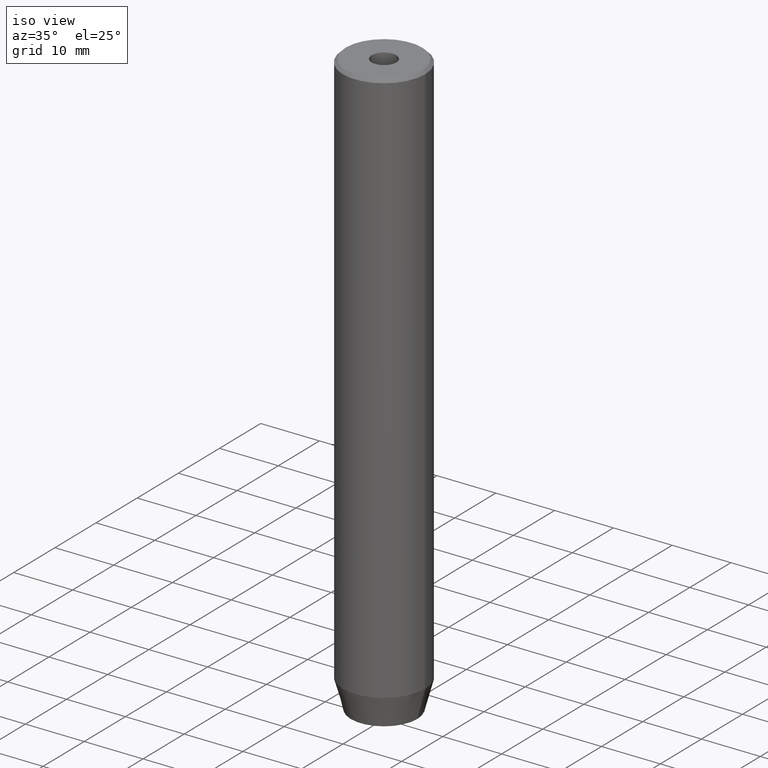
[diagram: clean part render]
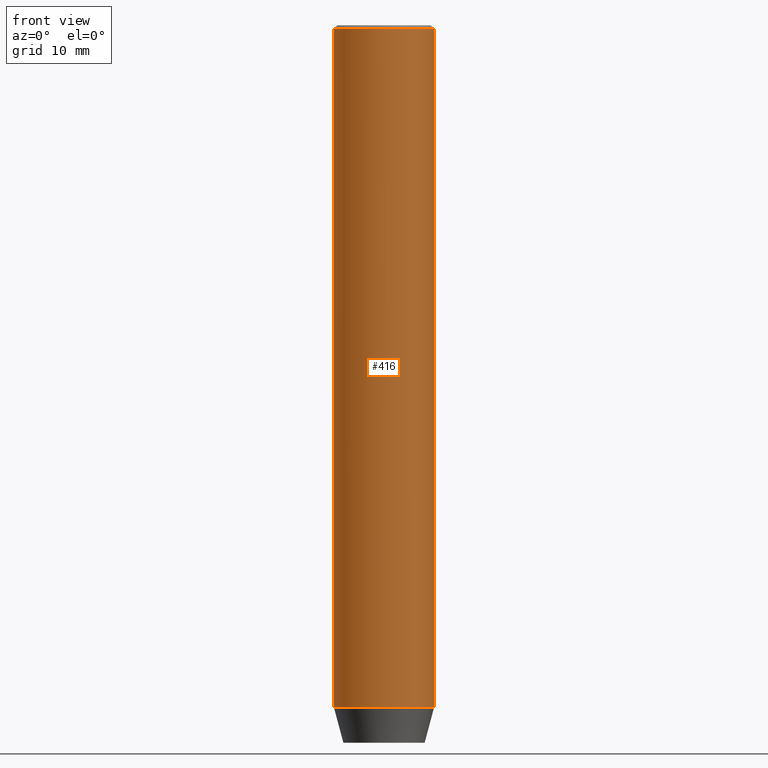
[diagram: tour spotlight — one face highlighted and labeled with its STEP entity id]
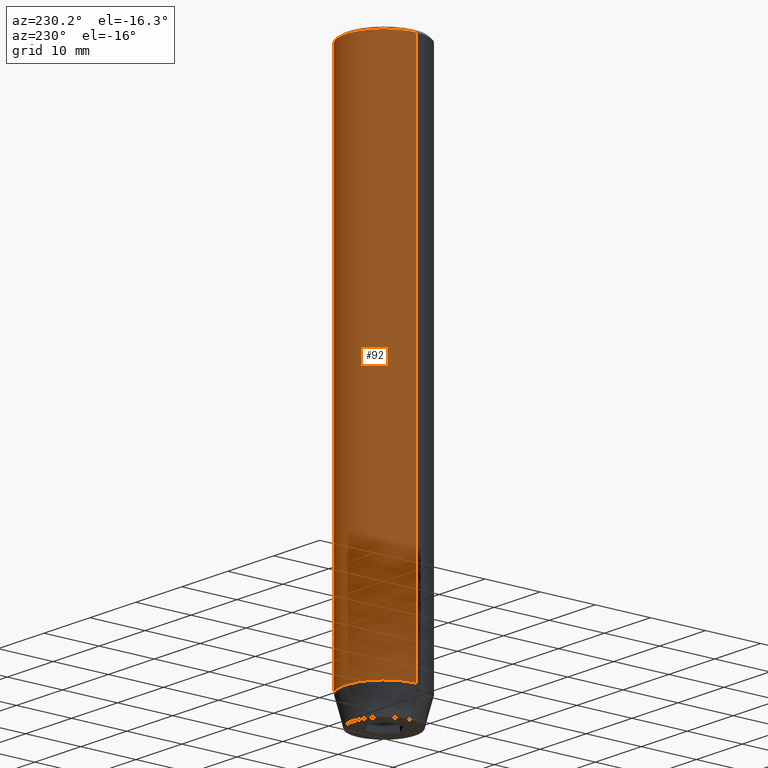
[diagram: tour spotlight — one face highlighted and labeled with its STEP entity id]
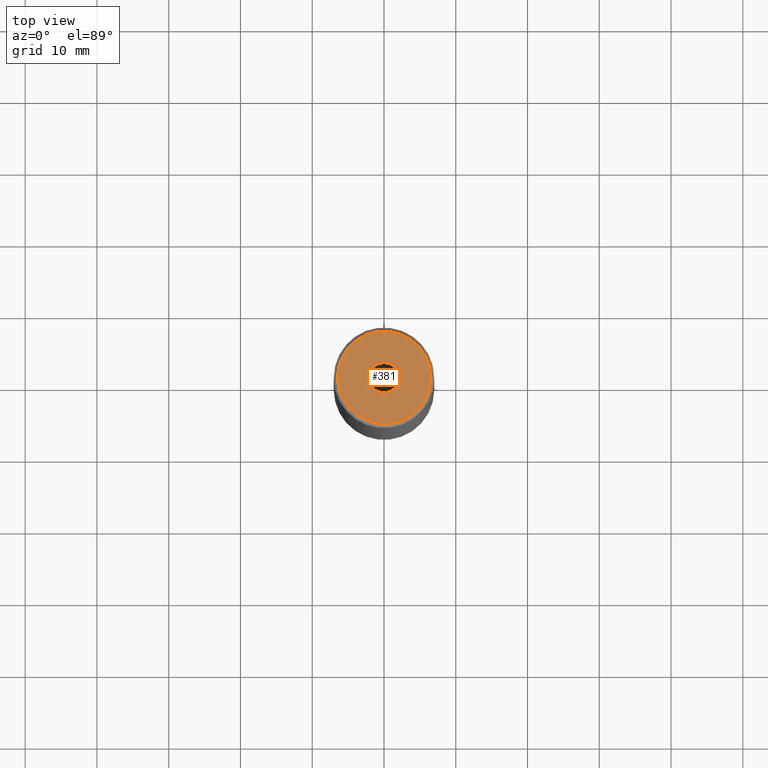
[diagram: tour spotlight — one face highlighted and labeled with its STEP entity id]
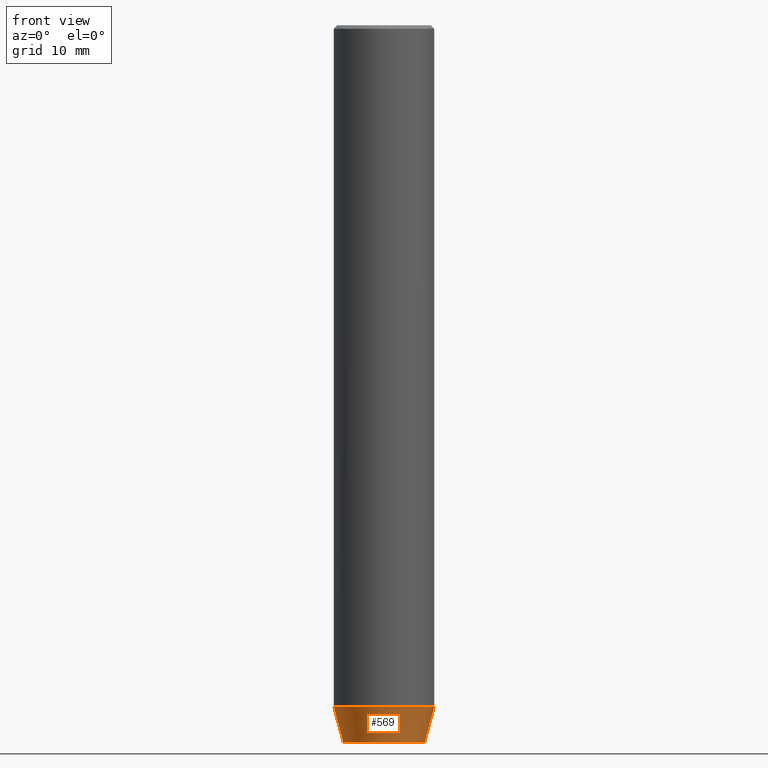
[diagram: tour spotlight — one face highlighted and labeled with its STEP entity id]
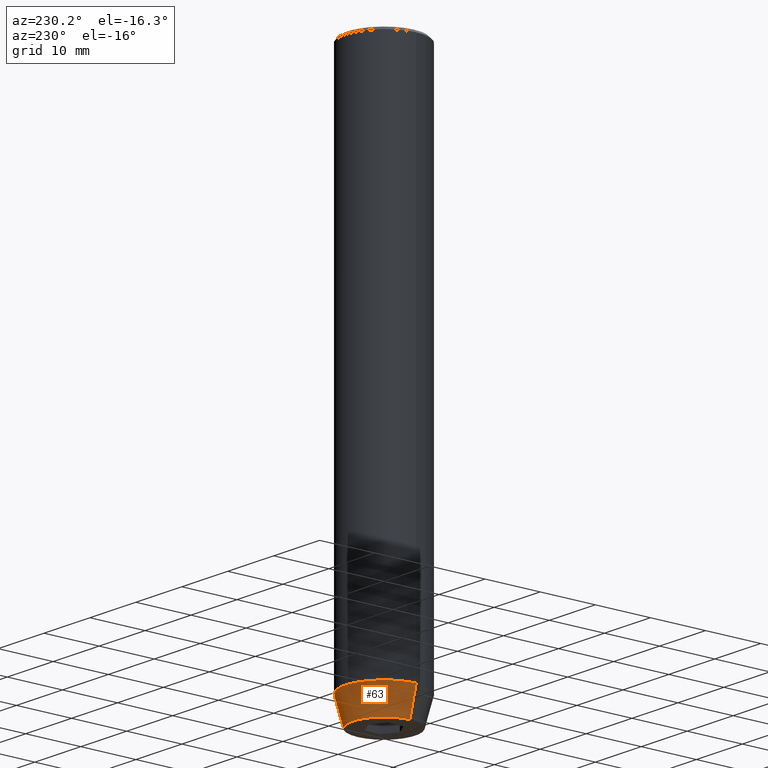
[diagram: tour spotlight — one face highlighted and labeled with its STEP entity id]
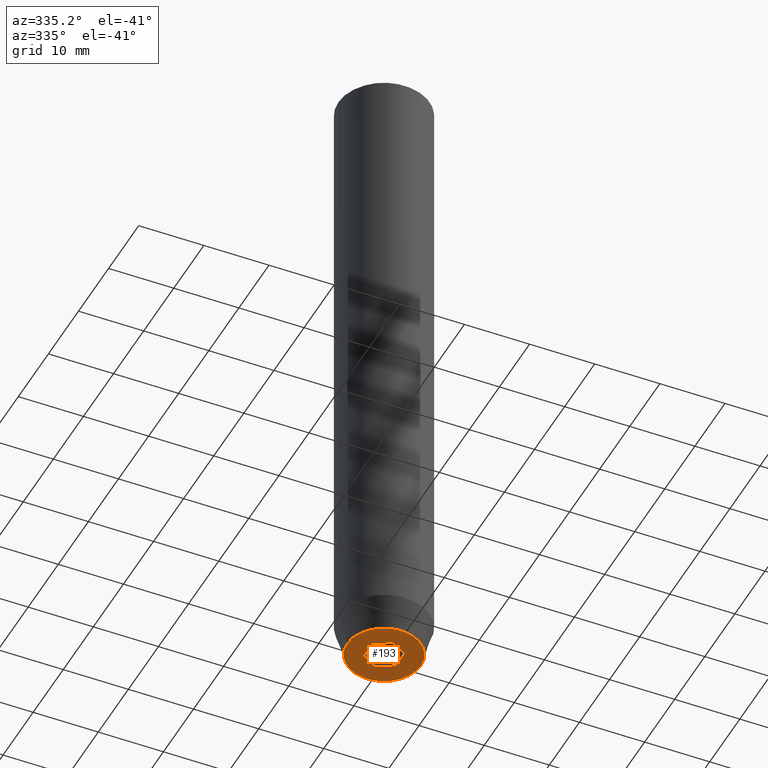
[diagram: tour spotlight — one face highlighted and labeled with its STEP entity id]
A machine part: a face-by-face anatomy tour. The part has 19 B-rep faces; the first image is the clean iso view, then the 6 largest visible faces are spotlighted one at a time (largest first), each with its STEP entity span.

Face 1 — front view, entity #416. In plain terms, the highlighted cylindrical surface (partial cylindrical patch) has radius 7 mm, axis along (-0, -0, 1).
Definition (entity closure, byte-faithful):
#15 = ORIENTED_EDGE ( 'NONE', *, *, #308, .T. ) ;
#36 = DIRECTION ( 'NONE',  ( -0.000000000000000000, -0.000000000000000000, 1.000000000000000000 ) ) ;
#48 = AXIS2_PLACEMENT_3D ( 'NONE', #438, #442, #301 ) ;
#51 = EDGE_CURVE ( 'NONE', #240, #518, #566, .T. ) ;
#67 = LINE ( 'NONE', #564, #405 ) ;
#80 = VERTEX_POINT ( 'NONE', #127 ) ;
#88 = CYLINDRICAL_SURFACE ( 'NONE', #178, 7.000000000000000000 ) ;
#127 = CARTESIAN_POINT ( 'NONE',  ( 7.000000000000000000, 0.000000000000000000, -95.00000000000000000 ) ) ;
#130 = DIRECTION ( 'NONE',  ( -0.000000000000000000, -0.000000000000000000, 1.000000000000000000 ) ) ;
#155 = VERTEX_POINT ( 'NONE', #185 ) ;
#176 = DIRECTION ( 'NONE',  ( -0.000000000000000000, -0.000000000000000000, 1.000000000000000000 ) ) ;
#177 = DIRECTION ( 'NONE',  ( 1.000000000000000000, 0.000000000000000000, 0.000000000000000000 ) ) ;
#178 = AXIS2_PLACEMENT_3D ( 'NONE', #578, #130, #177 ) ;
#179 = ORIENTED_EDGE ( 'NONE', *, *, #314, .T. ) ;
#182 = CARTESIAN_POINT ( 'NONE',  ( 0.000000000000000000, 0.000000000000000000, -95.00000000000000000 ) ) ;
#185 = CARTESIAN_POINT ( 'NONE',  ( 7.000000000000000000, 0.000000000000000000, -0.5000000000000048850 ) ) ;
#240 = VERTEX_POINT ( 'NONE', #440 ) ;
#267 = VECTOR ( 'NONE', #36, 1000.000000000000000 ) ;
#269 = AXIS2_PLACEMENT_3D ( 'NONE', #182, #176, #529 ) ;
#301 = DIRECTION ( 'NONE',  ( 1.000000000000000000, 0.000000000000000000, 0.000000000000000000 ) ) ;
#307 = DIRECTION ( 'NONE',  ( -0.000000000000000000, -0.000000000000000000, 1.000000000000000000 ) ) ;
#308 = EDGE_CURVE ( 'NONE', #80, #155, #67, .T. ) ;
#314 = EDGE_CURVE ( 'NONE', #155, #518, #427, .T. ) ;
#333 = ORIENTED_EDGE ( 'NONE', *, *, #51, .F. ) ;
#346 = EDGE_LOOP ( 'NONE', ( #333, #383, #15, #179 ) ) ;
#383 = ORIENTED_EDGE ( 'NONE', *, *, #407, .T. ) ;
#404 = FACE_OUTER_BOUND ( 'NONE', #346, .T. ) ;
#405 = VECTOR ( 'NONE', #307, 1000.000000000000000 ) ;
#407 = EDGE_CURVE ( 'NONE', #240, #80, #513, .T. ) ;
#416 = ADVANCED_FACE ( 'NONE', ( #404 ), #88, .T. ) ;
#427 = CIRCLE ( 'NONE', #48, 7.000000000000000000 ) ;
#438 = CARTESIAN_POINT ( 'NONE',  ( 0.000000000000000000, 0.000000000000000000, -0.5000000000000048850 ) ) ;
#440 = CARTESIAN_POINT ( 'NONE',  ( -7.000000000000000000, 8.572527594031473190E-16, -95.00000000000000000 ) ) ;
#442 = DIRECTION ( 'NONE',  ( 0.000000000000000000, 0.000000000000000000, -1.000000000000000000 ) ) ;
#513 = CIRCLE ( 'NONE', #269, 7.000000000000000000 ) ;
#518 = VERTEX_POINT ( 'NONE', #530 ) ;
#529 = DIRECTION ( 'NONE',  ( 1.000000000000000000, 0.000000000000000000, 0.000000000000000000 ) ) ;
#530 = CARTESIAN_POINT ( 'NONE',  ( -7.000000000000000000, 8.572527594031473190E-16, -0.5000000000000048850 ) ) ;
#564 = CARTESIAN_POINT ( 'NONE',  ( 7.000000000000000000, 0.000000000000000000, 0.000000000000000000 ) ) ;
#566 = LINE ( 'NONE', #576, #267 ) ;
#576 = CARTESIAN_POINT ( 'NONE',  ( -7.000000000000000000, 8.572527594031473190E-16, 0.000000000000000000 ) ) ;
#578 = CARTESIAN_POINT ( 'NONE',  ( 0.000000000000000000, 0.000000000000000000, 0.000000000000000000 ) ) ;

Face 2 — auxiliary view, entity #92. In plain terms, the highlighted cylindrical surface (partial cylindrical patch) has radius 7 mm, axis along (-0, -0, 1).
Definition (entity closure, byte-faithful):
#11 = DIRECTION ( 'NONE',  ( 1.000000000000000000, 0.000000000000000000, 0.000000000000000000 ) ) ;
#14 = CARTESIAN_POINT ( 'NONE',  ( 0.000000000000000000, 0.000000000000000000, 0.000000000000000000 ) ) ;
#17 = DIRECTION ( 'NONE',  ( -0.000000000000000000, -0.000000000000000000, 1.000000000000000000 ) ) ;
#36 = DIRECTION ( 'NONE',  ( -0.000000000000000000, -0.000000000000000000, 1.000000000000000000 ) ) ;
#51 = EDGE_CURVE ( 'NONE', #240, #518, #566, .T. ) ;
#65 = CARTESIAN_POINT ( 'NONE',  ( 0.000000000000000000, 0.000000000000000000, -95.00000000000000000 ) ) ;
#67 = LINE ( 'NONE', #564, #405 ) ;
#70 = CIRCLE ( 'NONE', #417, 7.000000000000000000 ) ;
#80 = VERTEX_POINT ( 'NONE', #127 ) ;
#89 = AXIS2_PLACEMENT_3D ( 'NONE', #65, #17, #519 ) ;
#92 = ADVANCED_FACE ( 'NONE', ( #426 ), #238, .T. ) ;
#95 = EDGE_CURVE ( 'NONE', #518, #155, #70, .T. ) ;
#126 = ORIENTED_EDGE ( 'NONE', *, *, #51, .T. ) ;
#127 = CARTESIAN_POINT ( 'NONE',  ( 7.000000000000000000, 0.000000000000000000, -95.00000000000000000 ) ) ;
#155 = VERTEX_POINT ( 'NONE', #185 ) ;
#164 = EDGE_LOOP ( 'NONE', ( #423, #126, #429, #206 ) ) ;
#185 = CARTESIAN_POINT ( 'NONE',  ( 7.000000000000000000, 0.000000000000000000, -0.5000000000000048850 ) ) ;
#195 = DIRECTION ( 'NONE',  ( 1.000000000000000000, 0.000000000000000000, 0.000000000000000000 ) ) ;
#206 = ORIENTED_EDGE ( 'NONE', *, *, #308, .F. ) ;
#238 = CYLINDRICAL_SURFACE ( 'NONE', #547, 7.000000000000000000 ) ;
#240 = VERTEX_POINT ( 'NONE', #440 ) ;
#267 = VECTOR ( 'NONE', #36, 1000.000000000000000 ) ;
#275 = EDGE_CURVE ( 'NONE', #80, #240, #436, .T. ) ;
#307 = DIRECTION ( 'NONE',  ( -0.000000000000000000, -0.000000000000000000, 1.000000000000000000 ) ) ;
#308 = EDGE_CURVE ( 'NONE', #80, #155, #67, .T. ) ;
#382 = CARTESIAN_POINT ( 'NONE',  ( 0.000000000000000000, 0.000000000000000000, -0.5000000000000048850 ) ) ;
#405 = VECTOR ( 'NONE', #307, 1000.000000000000000 ) ;
#417 = AXIS2_PLACEMENT_3D ( 'NONE', #382, #424, #11 ) ;
#423 = ORIENTED_EDGE ( 'NONE', *, *, #275, .T. ) ;
#424 = DIRECTION ( 'NONE',  ( 0.000000000000000000, 0.000000000000000000, -1.000000000000000000 ) ) ;
#426 = FACE_OUTER_BOUND ( 'NONE', #164, .T. ) ;
#429 = ORIENTED_EDGE ( 'NONE', *, *, #95, .T. ) ;
#436 = CIRCLE ( 'NONE', #89, 7.000000000000000000 ) ;
#440 = CARTESIAN_POINT ( 'NONE',  ( -7.000000000000000000, 8.572527594031473190E-16, -95.00000000000000000 ) ) ;
#507 = DIRECTION ( 'NONE',  ( -0.000000000000000000, -0.000000000000000000, 1.000000000000000000 ) ) ;
#518 = VERTEX_POINT ( 'NONE', #530 ) ;
#519 = DIRECTION ( 'NONE',  ( 1.000000000000000000, 0.000000000000000000, 0.000000000000000000 ) ) ;
#530 = CARTESIAN_POINT ( 'NONE',  ( -7.000000000000000000, 8.572527594031473190E-16, -0.5000000000000048850 ) ) ;
#547 = AXIS2_PLACEMENT_3D ( 'NONE', #14, #507, #195 ) ;
#564 = CARTESIAN_POINT ( 'NONE',  ( 7.000000000000000000, 0.000000000000000000, 0.000000000000000000 ) ) ;
#566 = LINE ( 'NONE', #576, #267 ) ;
#576 = CARTESIAN_POINT ( 'NONE',  ( -7.000000000000000000, 8.572527594031473190E-16, 0.000000000000000000 ) ) ;

Face 3 — top view, entity #381. In plain terms, the highlighted planar face has unit normal (0, -0, 1).
Definition (entity closure, byte-faithful):
#13 = ORIENTED_EDGE ( 'NONE', *, *, #197, .T. ) ;
#21 = AXIS2_PLACEMENT_3D ( 'NONE', #522, #353, #161 ) ;
#32 = CARTESIAN_POINT ( 'NONE',  ( 2.099999999999998757, 0.000000000000000000, -1.990051048614449116E-16 ) ) ;
#54 = DIRECTION ( 'NONE',  ( -0.000000000000000000, -0.000000000000000000, 1.000000000000000000 ) ) ;
#71 = PLANE ( 'NONE',  #254 ) ;
#98 = DIRECTION ( 'NONE',  ( 1.000000000000000000, 0.000000000000000000, 0.000000000000000000 ) ) ;
#125 = CARTESIAN_POINT ( 'NONE',  ( 0.000000000000000000, 0.000000000000000000, -1.990051048614449116E-16 ) ) ;
#148 = CIRCLE ( 'NONE', #192, 6.499999999999992006 ) ;
#159 = ORIENTED_EDGE ( 'NONE', *, *, #347, .F. ) ;
#161 = DIRECTION ( 'NONE',  ( 1.000000000000000000, 0.000000000000000000, 0.000000000000000000 ) ) ;
#192 = AXIS2_PLACEMENT_3D ( 'NONE', #227, #274, #583 ) ;
#194 = VERTEX_POINT ( 'NONE', #544 ) ;
#197 = EDGE_CURVE ( 'NONE', #386, #297, #232, .T. ) ;
#212 = DIRECTION ( 'NONE',  ( 1.000000000000000000, 0.000000000000000000, 0.000000000000000000 ) ) ;
#214 = CARTESIAN_POINT ( 'NONE',  ( 6.499999999999992006, 8.266365894244629403E-16, 0.000000000000000000 ) ) ;
#218 = FACE_OUTER_BOUND ( 'NONE', #373, .T. ) ;
#227 = CARTESIAN_POINT ( 'NONE',  ( 0.000000000000000000, 0.000000000000000000, 0.000000000000000000 ) ) ;
#232 = CIRCLE ( 'NONE', #243, 6.499999999999992006 ) ;
#243 = AXIS2_PLACEMENT_3D ( 'NONE', #371, #54, #98 ) ;
#254 = AXIS2_PLACEMENT_3D ( 'NONE', #399, #265, #517 ) ;
#265 = DIRECTION ( 'NONE',  ( 0.000000000000000000, -0.000000000000000000, 1.000000000000000000 ) ) ;
#274 = DIRECTION ( 'NONE',  ( -0.000000000000000000, -0.000000000000000000, 1.000000000000000000 ) ) ;
#297 = VERTEX_POINT ( 'NONE', #214 ) ;
#299 = CARTESIAN_POINT ( 'NONE',  ( -6.499999999999992006, 0.000000000000000000, 0.000000000000000000 ) ) ;
#300 = ORIENTED_EDGE ( 'NONE', *, *, #492, .T. ) ;
#311 = DIRECTION ( 'NONE',  ( -0.000000000000000000, -0.000000000000000000, 1.000000000000000000 ) ) ;
#315 = CIRCLE ( 'NONE', #532, 2.099999999999998757 ) ;
#347 = EDGE_CURVE ( 'NONE', #194, #370, #572, .T. ) ;
#353 = DIRECTION ( 'NONE',  ( -0.000000000000000000, -0.000000000000000000, 1.000000000000000000 ) ) ;
#368 = EDGE_CURVE ( 'NONE', #370, #194, #315, .T. ) ;
#370 = VERTEX_POINT ( 'NONE', #32 ) ;
#371 = CARTESIAN_POINT ( 'NONE',  ( 0.000000000000000000, 0.000000000000000000, 0.000000000000000000 ) ) ;
#373 = EDGE_LOOP ( 'NONE', ( #13, #300 ) ) ;
#378 = EDGE_LOOP ( 'NONE', ( #548, #159 ) ) ;
#381 = ADVANCED_FACE ( 'NONE', ( #485, #218 ), #71, .T. ) ;
#386 = VERTEX_POINT ( 'NONE', #299 ) ;
#399 = CARTESIAN_POINT ( 'NONE',  ( 0.000000000000000000, 0.000000000000000000, 0.000000000000000000 ) ) ;
#485 = FACE_BOUND ( 'NONE', #378, .T. ) ;
#492 = EDGE_CURVE ( 'NONE', #297, #386, #148, .T. ) ;
#517 = DIRECTION ( 'NONE',  ( 1.000000000000000000, 0.000000000000000000, 0.000000000000000000 ) ) ;
#522 = CARTESIAN_POINT ( 'NONE',  ( 0.000000000000000000, 0.000000000000000000, -1.990051048614449116E-16 ) ) ;
#532 = AXIS2_PLACEMENT_3D ( 'NONE', #125, #311, #212 ) ;
#544 = CARTESIAN_POINT ( 'NONE',  ( -2.099999999999998757, 2.571758278209439985E-16, -1.990051048614449116E-16 ) ) ;
#548 = ORIENTED_EDGE ( 'NONE', *, *, #368, .F. ) ;
#572 = CIRCLE ( 'NONE', #21, 2.099999999999998757 ) ;
#583 = DIRECTION ( 'NONE',  ( 1.000000000000000000, 0.000000000000000000, 0.000000000000000000 ) ) ;

Face 4 — front view, entity #569. In plain terms, the highlighted conical surface has half-angle 15 deg.
Definition (entity closure, byte-faithful):
#2 = EDGE_LOOP ( 'NONE', ( #190, #556, #543, #167 ) ) ;
#79 = DIRECTION ( 'NONE',  ( 0.2588190451025211836, 0.000000000000000000, 0.9659258262890680902 ) ) ;
#80 = VERTEX_POINT ( 'NONE', #127 ) ;
#84 = DIRECTION ( 'NONE',  ( -0.000000000000000000, -0.000000000000000000, 1.000000000000000000 ) ) ;
#96 = DIRECTION ( 'NONE',  ( -0.2588190451025211836, 3.169619151431770488E-17, 0.9659258262890680902 ) ) ;
#111 = AXIS2_PLACEMENT_3D ( 'NONE', #187, #145, #326 ) ;
#113 = CARTESIAN_POINT ( 'NONE',  ( 7.000000000000000000, 0.000000000000000000, -95.00000000000000000 ) ) ;
#122 = CIRCLE ( 'NONE', #448, 5.660254037844382857 ) ;
#127 = CARTESIAN_POINT ( 'NONE',  ( 7.000000000000000000, 0.000000000000000000, -95.00000000000000000 ) ) ;
#139 = CONICAL_SURFACE ( 'NONE', #111, 7.000000000000000000, 0.2617993877991499074 ) ;
#142 = VERTEX_POINT ( 'NONE', #293 ) ;
#145 = DIRECTION ( 'NONE',  ( -0.000000000000000000, -0.000000000000000000, 1.000000000000000000 ) ) ;
#167 = ORIENTED_EDGE ( 'NONE', *, *, #407, .F. ) ;
#176 = DIRECTION ( 'NONE',  ( -0.000000000000000000, -0.000000000000000000, 1.000000000000000000 ) ) ;
#182 = CARTESIAN_POINT ( 'NONE',  ( 0.000000000000000000, 0.000000000000000000, -95.00000000000000000 ) ) ;
#187 = CARTESIAN_POINT ( 'NONE',  ( 0.000000000000000000, 0.000000000000000000, -95.00000000000000000 ) ) ;
#190 = ORIENTED_EDGE ( 'NONE', *, *, #539, .F. ) ;
#205 = LINE ( 'NONE', #113, #445 ) ;
#208 = CARTESIAN_POINT ( 'NONE',  ( -5.660254037844382857, 7.752169791919238770E-16, -100.0000000000000000 ) ) ;
#229 = VERTEX_POINT ( 'NONE', #208 ) ;
#240 = VERTEX_POINT ( 'NONE', #440 ) ;
#268 = DIRECTION ( 'NONE',  ( 1.000000000000000000, 0.000000000000000000, 0.000000000000000000 ) ) ;
#269 = AXIS2_PLACEMENT_3D ( 'NONE', #182, #176, #529 ) ;
#273 = VECTOR ( 'NONE', #96, 1000.000000000000114 ) ;
#291 = CARTESIAN_POINT ( 'NONE',  ( -7.000000000000000000, 8.572527594031473190E-16, -95.00000000000000000 ) ) ;
#293 = CARTESIAN_POINT ( 'NONE',  ( 5.660254037844382857, 0.000000000000000000, -100.0000000000000000 ) ) ;
#326 = DIRECTION ( 'NONE',  ( 1.000000000000000000, 0.000000000000000000, 0.000000000000000000 ) ) ;
#369 = LINE ( 'NONE', #291, #273 ) ;
#407 = EDGE_CURVE ( 'NONE', #240, #80, #513, .T. ) ;
#440 = CARTESIAN_POINT ( 'NONE',  ( -7.000000000000000000, 8.572527594031473190E-16, -95.00000000000000000 ) ) ;
#445 = VECTOR ( 'NONE', #79, 1000.000000000000114 ) ;
#448 = AXIS2_PLACEMENT_3D ( 'NONE', #488, #84, #268 ) ;
#488 = CARTESIAN_POINT ( 'NONE',  ( 0.000000000000000000, 0.000000000000000000, -100.0000000000000000 ) ) ;
#513 = CIRCLE ( 'NONE', #269, 7.000000000000000000 ) ;
#527 = EDGE_CURVE ( 'NONE', #229, #142, #122, .T. ) ;
#529 = DIRECTION ( 'NONE',  ( 1.000000000000000000, 0.000000000000000000, 0.000000000000000000 ) ) ;
#539 = EDGE_CURVE ( 'NONE', #229, #240, #369, .T. ) ;
#540 = FACE_OUTER_BOUND ( 'NONE', #2, .T. ) ;
#543 = ORIENTED_EDGE ( 'NONE', *, *, #584, .T. ) ;
#556 = ORIENTED_EDGE ( 'NONE', *, *, #527, .T. ) ;
#569 = ADVANCED_FACE ( 'NONE', ( #540 ), #139, .T. ) ;
#584 = EDGE_CURVE ( 'NONE', #142, #80, #205, .T. ) ;

Face 5 — auxiliary view, entity #63. In plain terms, the highlighted conical surface has half-angle 15 deg.
Definition (entity closure, byte-faithful):
#4 = ORIENTED_EDGE ( 'NONE', *, *, #584, .F. ) ;
#8 = EDGE_LOOP ( 'NONE', ( #50, #354, #414, #4 ) ) ;
#17 = DIRECTION ( 'NONE',  ( -0.000000000000000000, -0.000000000000000000, 1.000000000000000000 ) ) ;
#50 = ORIENTED_EDGE ( 'NONE', *, *, #363, .T. ) ;
#61 = AXIS2_PLACEMENT_3D ( 'NONE', #526, #476, #342 ) ;
#63 = ADVANCED_FACE ( 'NONE', ( #401 ), #412, .T. ) ;
#65 = CARTESIAN_POINT ( 'NONE',  ( 0.000000000000000000, 0.000000000000000000, -95.00000000000000000 ) ) ;
#79 = DIRECTION ( 'NONE',  ( 0.2588190451025211836, 0.000000000000000000, 0.9659258262890680902 ) ) ;
#80 = VERTEX_POINT ( 'NONE', #127 ) ;
#83 = DIRECTION ( 'NONE',  ( 1.000000000000000000, 0.000000000000000000, 0.000000000000000000 ) ) ;
#89 = AXIS2_PLACEMENT_3D ( 'NONE', #65, #17, #519 ) ;
#96 = DIRECTION ( 'NONE',  ( -0.2588190451025211836, 3.169619151431770488E-17, 0.9659258262890680902 ) ) ;
#110 = CIRCLE ( 'NONE', #61, 5.660254037844382857 ) ;
#113 = CARTESIAN_POINT ( 'NONE',  ( 7.000000000000000000, 0.000000000000000000, -95.00000000000000000 ) ) ;
#127 = CARTESIAN_POINT ( 'NONE',  ( 7.000000000000000000, 0.000000000000000000, -95.00000000000000000 ) ) ;
#142 = VERTEX_POINT ( 'NONE', #293 ) ;
#205 = LINE ( 'NONE', #113, #445 ) ;
#208 = CARTESIAN_POINT ( 'NONE',  ( -5.660254037844382857, 7.752169791919238770E-16, -100.0000000000000000 ) ) ;
#229 = VERTEX_POINT ( 'NONE', #208 ) ;
#240 = VERTEX_POINT ( 'NONE', #440 ) ;
#273 = VECTOR ( 'NONE', #96, 1000.000000000000114 ) ;
#275 = EDGE_CURVE ( 'NONE', #80, #240, #436, .T. ) ;
#282 = AXIS2_PLACEMENT_3D ( 'NONE', #487, #356, #83 ) ;
#291 = CARTESIAN_POINT ( 'NONE',  ( -7.000000000000000000, 8.572527594031473190E-16, -95.00000000000000000 ) ) ;
#293 = CARTESIAN_POINT ( 'NONE',  ( 5.660254037844382857, 0.000000000000000000, -100.0000000000000000 ) ) ;
#342 = DIRECTION ( 'NONE',  ( 1.000000000000000000, 0.000000000000000000, 0.000000000000000000 ) ) ;
#354 = ORIENTED_EDGE ( 'NONE', *, *, #539, .T. ) ;
#356 = DIRECTION ( 'NONE',  ( -0.000000000000000000, -0.000000000000000000, 1.000000000000000000 ) ) ;
#363 = EDGE_CURVE ( 'NONE', #142, #229, #110, .T. ) ;
#369 = LINE ( 'NONE', #291, #273 ) ;
#401 = FACE_OUTER_BOUND ( 'NONE', #8, .T. ) ;
#412 = CONICAL_SURFACE ( 'NONE', #282, 7.000000000000000000, 0.2617993877991499074 ) ;
#414 = ORIENTED_EDGE ( 'NONE', *, *, #275, .F. ) ;
#436 = CIRCLE ( 'NONE', #89, 7.000000000000000000 ) ;
#440 = CARTESIAN_POINT ( 'NONE',  ( -7.000000000000000000, 8.572527594031473190E-16, -95.00000000000000000 ) ) ;
#445 = VECTOR ( 'NONE', #79, 1000.000000000000114 ) ;
#476 = DIRECTION ( 'NONE',  ( -0.000000000000000000, -0.000000000000000000, 1.000000000000000000 ) ) ;
#487 = CARTESIAN_POINT ( 'NONE',  ( 0.000000000000000000, 0.000000000000000000, -95.00000000000000000 ) ) ;
#519 = DIRECTION ( 'NONE',  ( 1.000000000000000000, 0.000000000000000000, 0.000000000000000000 ) ) ;
#526 = CARTESIAN_POINT ( 'NONE',  ( 0.000000000000000000, 0.000000000000000000, -100.0000000000000000 ) ) ;
#539 = EDGE_CURVE ( 'NONE', #229, #240, #369, .T. ) ;
#584 = EDGE_CURVE ( 'NONE', #142, #80, #205, .T. ) ;

Face 6 — auxiliary view, entity #193. In plain terms, the highlighted planar face has unit normal (0, 0, -1).
Definition (entity closure, byte-faithful):
#18 = VERTEX_POINT ( 'NONE', #341 ) ;
#19 = VECTOR ( 'NONE', #47, 999.9999999999998863 ) ;
#20 = CARTESIAN_POINT ( 'NONE',  ( -1.250000000000000444, 2.165063509461097269, -100.0000000000000000 ) ) ;
#26 = EDGE_CURVE ( 'NONE', #18, #559, #298, .T. ) ;
#40 = VECTOR ( 'NONE', #42, 1000.000000000000114 ) ;
#42 = DIRECTION ( 'NONE',  ( -0.8660254037844387076, 0.4999999999999998890, 0.000000000000000000 ) ) ;
#43 = CARTESIAN_POINT ( 'NONE',  ( 0.000000000000000000, 2.886751345948129099, -100.0000000000000000 ) ) ;
#47 = DIRECTION ( 'NONE',  ( -0.8660254037844387076, -0.5000000000000001110, 0.000000000000000000 ) ) ;
#61 = AXIS2_PLACEMENT_3D ( 'NONE', #526, #476, #342 ) ;
#84 = DIRECTION ( 'NONE',  ( -0.000000000000000000, -0.000000000000000000, 1.000000000000000000 ) ) ;
#85 = EDGE_CURVE ( 'NONE', #559, #571, #444, .T. ) ;
#87 = LINE ( 'NONE', #271, #580 ) ;
#109 = ORIENTED_EDGE ( 'NONE', *, *, #527, .F. ) ;
#110 = CIRCLE ( 'NONE', #61, 5.660254037844382857 ) ;
#118 = LINE ( 'NONE', #20, #364 ) ;
#122 = CIRCLE ( 'NONE', #448, 5.660254037844382857 ) ;
#135 = CARTESIAN_POINT ( 'NONE',  ( 1.250000000000000222, 2.165063509461096825, -100.0000000000000000 ) ) ;
#142 = VERTEX_POINT ( 'NONE', #293 ) ;
#150 = EDGE_LOOP ( 'NONE', ( #475, #109 ) ) ;
#193 = ADVANCED_FACE ( 'NONE', ( #454, #230 ), #418, .T. ) ;
#208 = CARTESIAN_POINT ( 'NONE',  ( -5.660254037844382857, 7.752169791919238770E-16, -100.0000000000000000 ) ) ;
#211 = DIRECTION ( 'NONE',  ( 0.000000000000000000, -1.000000000000000000, 0.000000000000000000 ) ) ;
#221 = ORIENTED_EDGE ( 'NONE', *, *, #473, .F. ) ;
#226 = CARTESIAN_POINT ( 'NONE',  ( -2.500000000000000444, 1.443375672974064772, -100.0000000000000000 ) ) ;
#229 = VERTEX_POINT ( 'NONE', #208 ) ;
#230 = FACE_OUTER_BOUND ( 'NONE', #150, .T. ) ;
#231 = VECTOR ( 'NONE', #211, 1000.000000000000000 ) ;
#234 = ORIENTED_EDGE ( 'NONE', *, *, #26, .F. ) ;
#248 = CARTESIAN_POINT ( 'NONE',  ( 0.000000000000000000, -2.886751345948128211, -100.0000000000000000 ) ) ;
#249 = ORIENTED_EDGE ( 'NONE', *, *, #498, .F. ) ;
#252 = CARTESIAN_POINT ( 'NONE',  ( 2.500000000000000000, 0.000000000000000000, -100.0000000000000000 ) ) ;
#262 = EDGE_CURVE ( 'NONE', #501, #525, #118, .T. ) ;
#268 = DIRECTION ( 'NONE',  ( 1.000000000000000000, 0.000000000000000000, 0.000000000000000000 ) ) ;
#271 = CARTESIAN_POINT ( 'NONE',  ( -2.500000000000000444, 0.000000000000000000, -100.0000000000000000 ) ) ;
#272 = LINE ( 'NONE', #449, #40 ) ;
#276 = CARTESIAN_POINT ( 'NONE',  ( 2.500000000000000000, -1.443375672974064106, -100.0000000000000000 ) ) ;
#292 = EDGE_LOOP ( 'NONE', ( #472, #221, #249, #336, #234, #459 ) ) ;
#293 = CARTESIAN_POINT ( 'NONE',  ( 5.660254037844382857, 0.000000000000000000, -100.0000000000000000 ) ) ;
#298 = LINE ( 'NONE', #252, #231 ) ;
#319 = CARTESIAN_POINT ( 'NONE',  ( -2.500000000000000444, -1.443375672974064328, -100.0000000000000000 ) ) ;
#336 = ORIENTED_EDGE ( 'NONE', *, *, #85, .F. ) ;
#341 = CARTESIAN_POINT ( 'NONE',  ( 2.500000000000000000, 1.443375672974064328, -100.0000000000000000 ) ) ;
#342 = DIRECTION ( 'NONE',  ( 1.000000000000000000, 0.000000000000000000, 0.000000000000000000 ) ) ;
#363 = EDGE_CURVE ( 'NONE', #142, #229, #110, .T. ) ;
#364 = VECTOR ( 'NONE', #575, 1000.000000000000000 ) ;
#367 = CARTESIAN_POINT ( 'NONE',  ( 0.000000000000000000, 5.660254037844382857, -100.0000000000000000 ) ) ;
#374 = CARTESIAN_POINT ( 'NONE',  ( 1.249999999999999778, -2.165063509461096380, -100.0000000000000000 ) ) ;
#375 = VECTOR ( 'NONE', #451, 1000.000000000000000 ) ;
#418 = PLANE ( 'NONE',  #549 ) ;
#425 = VERTEX_POINT ( 'NONE', #319 ) ;
#444 = LINE ( 'NONE', #374, #19 ) ;
#448 = AXIS2_PLACEMENT_3D ( 'NONE', #488, #84, #268 ) ;
#449 = CARTESIAN_POINT ( 'NONE',  ( -1.249999999999999556, -2.165063509461096825, -100.0000000000000000 ) ) ;
#451 = DIRECTION ( 'NONE',  ( 0.8660254037844385966, -0.5000000000000001110, 0.000000000000000000 ) ) ;
#454 = FACE_BOUND ( 'NONE', #292, .T. ) ;
#459 = ORIENTED_EDGE ( 'NONE', *, *, #514, .F. ) ;
#472 = ORIENTED_EDGE ( 'NONE', *, *, #262, .F. ) ;
#473 = EDGE_CURVE ( 'NONE', #425, #501, #87, .T. ) ;
#475 = ORIENTED_EDGE ( 'NONE', *, *, #363, .F. ) ;
#476 = DIRECTION ( 'NONE',  ( -0.000000000000000000, -0.000000000000000000, 1.000000000000000000 ) ) ;
#488 = CARTESIAN_POINT ( 'NONE',  ( 0.000000000000000000, 0.000000000000000000, -100.0000000000000000 ) ) ;
#497 = DIRECTION ( 'NONE',  ( 0.000000000000000000, 1.000000000000000000, 0.000000000000000000 ) ) ;
#498 = EDGE_CURVE ( 'NONE', #571, #425, #272, .T. ) ;
#500 = DIRECTION ( 'NONE',  ( -1.000000000000000000, 0.000000000000000000, -0.000000000000000000 ) ) ;
#501 = VERTEX_POINT ( 'NONE', #226 ) ;
#514 = EDGE_CURVE ( 'NONE', #525, #18, #582, .T. ) ;
#525 = VERTEX_POINT ( 'NONE', #43 ) ;
#526 = CARTESIAN_POINT ( 'NONE',  ( 0.000000000000000000, 0.000000000000000000, -100.0000000000000000 ) ) ;
#527 = EDGE_CURVE ( 'NONE', #229, #142, #122, .T. ) ;
#542 = DIRECTION ( 'NONE',  ( 0.000000000000000000, 0.000000000000000000, -1.000000000000000000 ) ) ;
#549 = AXIS2_PLACEMENT_3D ( 'NONE', #367, #542, #500 ) ;
#559 = VERTEX_POINT ( 'NONE', #276 ) ;
#571 = VERTEX_POINT ( 'NONE', #248 ) ;
#575 = DIRECTION ( 'NONE',  ( 0.8660254037844385966, 0.5000000000000001110, 0.000000000000000000 ) ) ;
#580 = VECTOR ( 'NONE', #497, 1000.000000000000000 ) ;
#582 = LINE ( 'NONE', #135, #375 ) ;